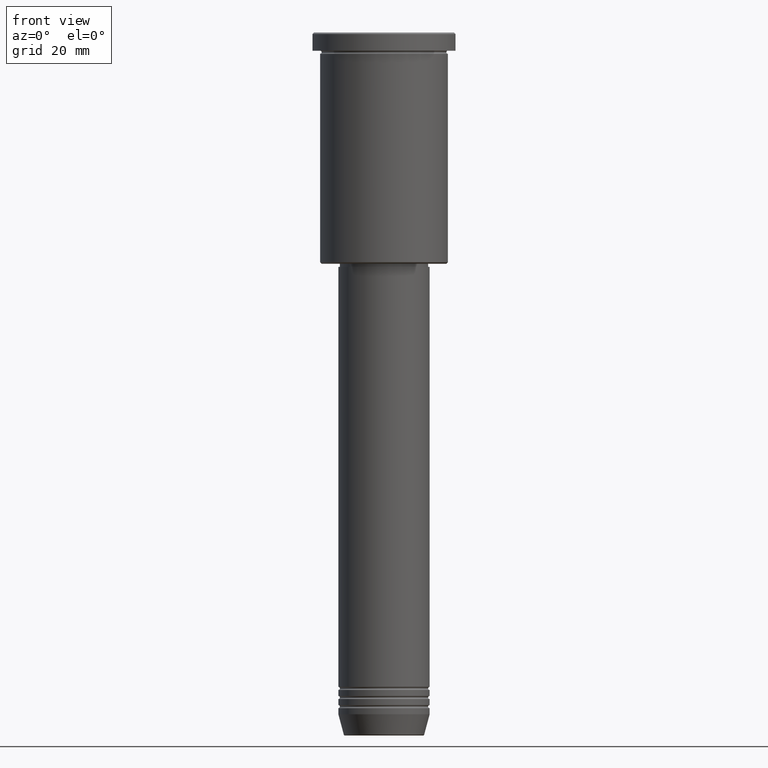
[diagram: clean part render]
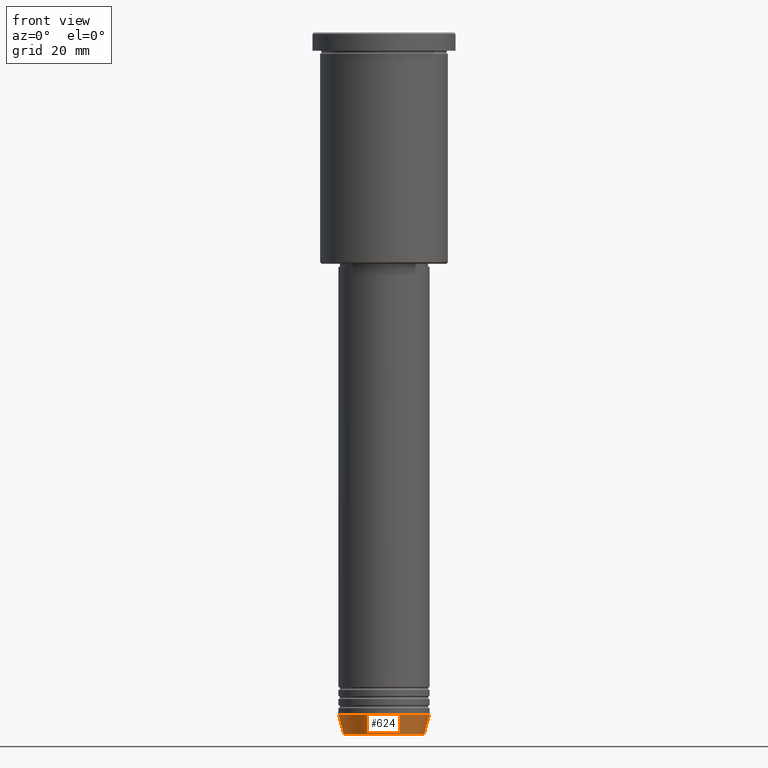
[diagram: same view with one face highlighted and labeled with its STEP entity id]
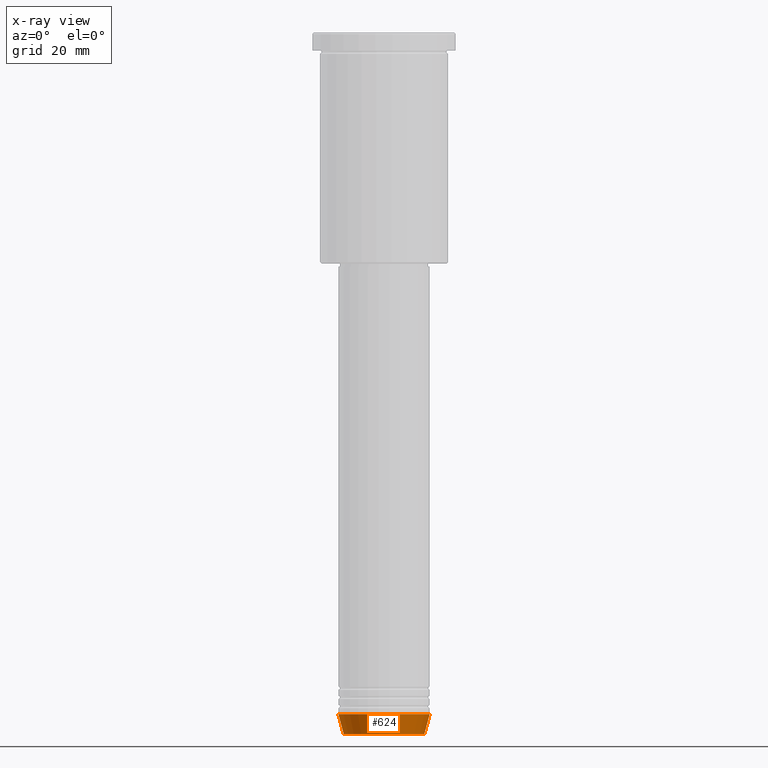
[diagram: x-ray of the same camera — body ghosted, the highlighted face saturated]
A machine part, front view. The second image highlights one B-rep face of the part: STEP entity #624.
The next image is the same camera in x-ray: the body ghosted, the highlighted face saturated — about 0% of this face is hidden behind the body in this view.
In plain terms, the highlighted conical surface has half-angle 15 deg.
Its self-contained STEP definition (entity closure, byte-faithful):
#9 = DIRECTION ( 'NONE',  ( 1.000000000000000000, 0.000000000000000000, 0.000000000000000000 ) ) ;
#13 = VERTEX_POINT ( 'NONE', #615 ) ;
#14 = DIRECTION ( 'NONE',  ( 1.000000000000000000, 0.000000000000000000, 0.000000000000000000 ) ) ;
#15 = DIRECTION ( 'NONE',  ( -0.000000000000000000, -0.000000000000000000, 1.000000000000000000 ) ) ;
#91 = CARTESIAN_POINT ( 'NONE',  ( 0.000000000000000000, 0.000000000000000000, -224.0000000000000000 ) ) ;
#103 = VECTOR ( 'NONE', #396, 1000.000000000000000 ) ;
#128 = CARTESIAN_POINT ( 'NONE',  ( 15.00000000000000000, 0.000000000000000000, -224.0000000000000000 ) ) ;
#319 = DIRECTION ( 'NONE',  ( 1.000000000000000000, 0.000000000000000000, 0.000000000000000000 ) ) ;
#327 = AXIS2_PLACEMENT_3D ( 'NONE', #750, #15, #14 ) ;
#333 = CARTESIAN_POINT ( 'NONE',  ( 0.000000000000000000, 0.000000000000000000, -224.0000000000000000 ) ) ;
#347 = EDGE_CURVE ( 'NONE', #412, #492, #456, .T. ) ;
#348 = ORIENTED_EDGE ( 'NONE', *, *, #561, .T. ) ;
#396 = DIRECTION ( 'NONE',  ( -0.2588190451025213501, 3.169619151431772337E-17, 0.9659258262890680902 ) ) ;
#405 = DIRECTION ( 'NONE',  ( -0.000000000000000000, -0.000000000000000000, 1.000000000000000000 ) ) ;
#412 = VERTEX_POINT ( 'NONE', #1003 ) ;
#456 = CIRCLE ( 'NONE', #486, 15.00000000000000000 ) ;
#486 = AXIS2_PLACEMENT_3D ( 'NONE', #91, #534, #9 ) ;
#492 = VERTEX_POINT ( 'NONE', #1023 ) ;
#518 = CARTESIAN_POINT ( 'NONE',  ( -13.22365507213719305, 1.728200442216588583E-15, -230.6294095225512422 ) ) ;
#534 = DIRECTION ( 'NONE',  ( -0.000000000000000000, -0.000000000000000000, 1.000000000000000000 ) ) ;
#561 = EDGE_CURVE ( 'NONE', #13, #492, #932, .T. ) ;
#595 = FACE_OUTER_BOUND ( 'NONE', #1061, .T. ) ;
#615 = CARTESIAN_POINT ( 'NONE',  ( 13.22365507213719305, 0.000000000000000000, -230.6294095225512422 ) ) ;
#624 = ADVANCED_FACE ( 'NONE', ( #595 ), #949, .T. ) ;
#631 = AXIS2_PLACEMENT_3D ( 'NONE', #333, #405, #319 ) ;
#669 = EDGE_CURVE ( 'NONE', #798, #13, #1049, .T. ) ;
#670 = LINE ( 'NONE', #1046, #103 ) ;
#702 = VECTOR ( 'NONE', #885, 1000.000000000000000 ) ;
#750 = CARTESIAN_POINT ( 'NONE',  ( 0.000000000000000000, 0.000000000000000000, -230.6294095225512422 ) ) ;
#765 = ORIENTED_EDGE ( 'NONE', *, *, #1179, .F. ) ;
#798 = VERTEX_POINT ( 'NONE', #518 ) ;
#885 = DIRECTION ( 'NONE',  ( 0.2588190451025213501, 0.000000000000000000, 0.9659258262890680902 ) ) ;
#932 = LINE ( 'NONE', #128, #702 ) ;
#949 = CONICAL_SURFACE ( 'NONE', #631, 15.00000000000000000, 0.2617993877991500740 ) ;
#972 = ORIENTED_EDGE ( 'NONE', *, *, #347, .F. ) ;
#1003 = CARTESIAN_POINT ( 'NONE',  ( -15.00000000000000000, 1.836970198721029589E-15, -224.0000000000000000 ) ) ;
#1023 = CARTESIAN_POINT ( 'NONE',  ( 15.00000000000000000, 0.000000000000000000, -224.0000000000000000 ) ) ;
#1046 = CARTESIAN_POINT ( 'NONE',  ( -15.00000000000000000, 1.836970198721029589E-15, -224.0000000000000000 ) ) ;
#1049 = CIRCLE ( 'NONE', #327, 13.22365507213719305 ) ;
#1061 = EDGE_LOOP ( 'NONE', ( #765, #1143, #348, #972 ) ) ;
#1143 = ORIENTED_EDGE ( 'NONE', *, *, #669, .T. ) ;
#1179 = EDGE_CURVE ( 'NONE', #798, #412, #670, .T. ) ;